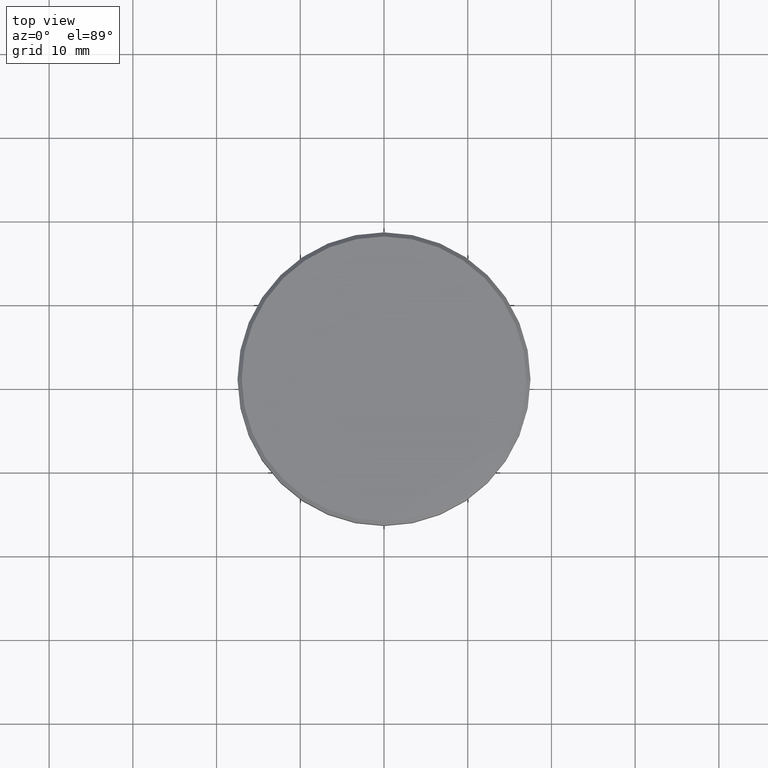
[diagram: clean part render]
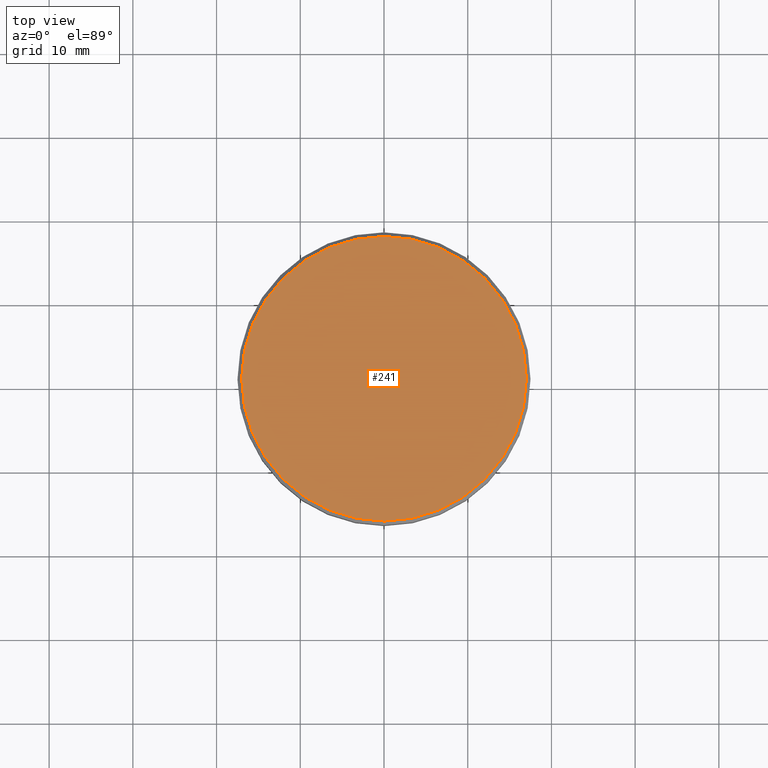
[diagram: same view with one face highlighted and labeled with its STEP entity id]
A machine part, top view. The second image highlights one B-rep face of the part: STEP entity #241.
In plain terms, the highlighted planar face has unit normal (0, -0, 1).
Its self-contained STEP definition (entity closure, byte-faithful):
#84 = AXIS2_PLACEMENT_3D ( 'NONE', #722, #627, #993 ) ;
#90 = DIRECTION ( 'NONE',  ( -0.000000000000000000, -0.000000000000000000, 1.000000000000000000 ) ) ;
#98 = DIRECTION ( 'NONE',  ( 1.000000000000000000, 0.000000000000000000, 0.000000000000000000 ) ) ;
#161 = CIRCLE ( 'NONE', #604, 16.99999999999999289 ) ;
#241 = ADVANCED_FACE ( 'NONE', ( #1159 ), #273, .T. ) ;
#273 = PLANE ( 'NONE',  #84 ) ;
#405 = EDGE_LOOP ( 'NONE', ( #925, #757 ) ) ;
#573 = CARTESIAN_POINT ( 'NONE',  ( 0.000000000000000000, 0.000000000000000000, 0.000000000000000000 ) ) ;
#578 = EDGE_CURVE ( 'NONE', #992, #1031, #161, .T. ) ;
#604 = AXIS2_PLACEMENT_3D ( 'NONE', #614, #90, #787 ) ;
#614 = CARTESIAN_POINT ( 'NONE',  ( 0.000000000000000000, 0.000000000000000000, 0.000000000000000000 ) ) ;
#624 = CARTESIAN_POINT ( 'NONE',  ( 16.99999999999999289, 2.112515728529184067E-15, 0.000000000000000000 ) ) ;
#627 = DIRECTION ( 'NONE',  ( 0.000000000000000000, -0.000000000000000000, 1.000000000000000000 ) ) ;
#722 = CARTESIAN_POINT ( 'NONE',  ( 0.000000000000000000, 0.000000000000000000, 0.000000000000000000 ) ) ;
#757 = ORIENTED_EDGE ( 'NONE', *, *, #775, .T. ) ;
#775 = EDGE_CURVE ( 'NONE', #1031, #992, #945, .T. ) ;
#787 = DIRECTION ( 'NONE',  ( 1.000000000000000000, 0.000000000000000000, 0.000000000000000000 ) ) ;
#925 = ORIENTED_EDGE ( 'NONE', *, *, #578, .T. ) ;
#933 = DIRECTION ( 'NONE',  ( -0.000000000000000000, -0.000000000000000000, 1.000000000000000000 ) ) ;
#945 = CIRCLE ( 'NONE', #1154, 16.99999999999999289 ) ;
#992 = VERTEX_POINT ( 'NONE', #1051 ) ;
#993 = DIRECTION ( 'NONE',  ( 1.000000000000000000, 0.000000000000000000, 0.000000000000000000 ) ) ;
#1031 = VERTEX_POINT ( 'NONE', #624 ) ;
#1051 = CARTESIAN_POINT ( 'NONE',  ( -16.99999999999999289, 0.000000000000000000, 0.000000000000000000 ) ) ;
#1154 = AXIS2_PLACEMENT_3D ( 'NONE', #573, #933, #98 ) ;
#1159 = FACE_OUTER_BOUND ( 'NONE', #405, .T. ) ;